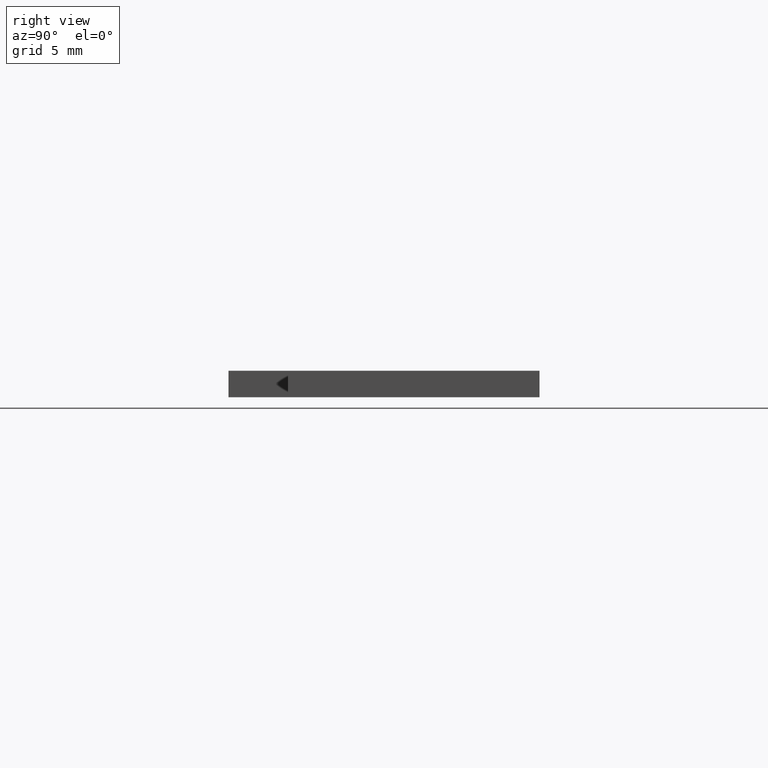
[diagram: clean part render]
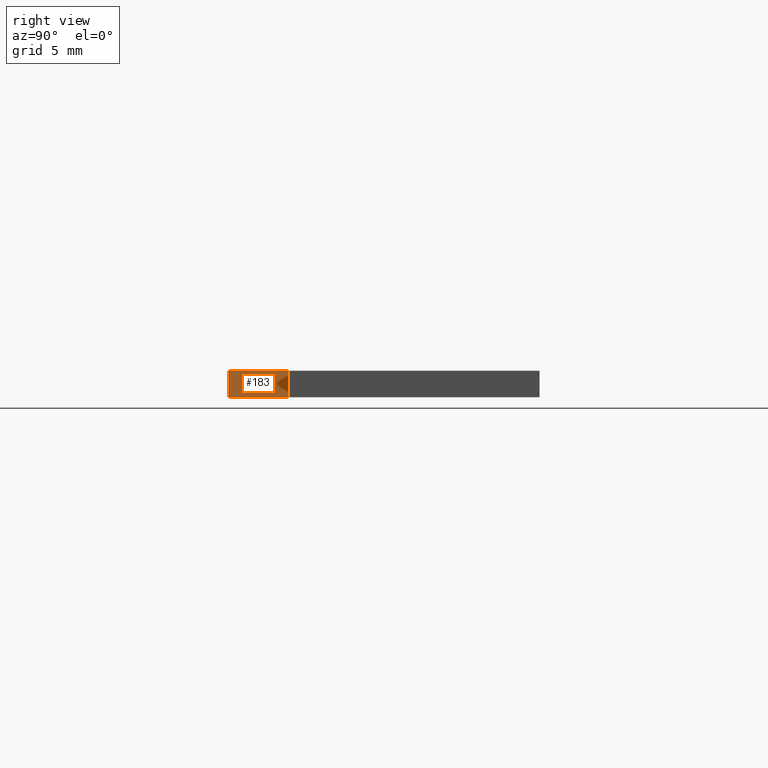
[diagram: same view with one face highlighted and labeled with its STEP entity id]
A machine part, right view. The second image highlights one B-rep face of the part: STEP entity #183.
In plain terms, the highlighted planar face has unit normal (1, 0, 0).
Its self-contained STEP definition (entity closure, byte-faithful):
#17=FACE_OUTER_BOUND('',#27,.T.);
#27=EDGE_LOOP('',(#132,#133,#134,#135));
#38=LINE('',#276,#62);
#44=LINE('',#289,#68);
#45=LINE('',#290,#69);
#46=LINE('',#291,#70);
#62=VECTOR('',#228,10.);
#68=VECTOR('',#236,10.);
#69=VECTOR('',#237,10.);
#70=VECTOR('',#238,10.);
#86=VERTEX_POINT('',#273);
#87=VERTEX_POINT('',#275);
#92=VERTEX_POINT('',#287);
#93=VERTEX_POINT('',#288);
#102=EDGE_CURVE('',#87,#86,#38,.T.);
#108=EDGE_CURVE('',#92,#93,#44,.T.);
#109=EDGE_CURVE('',#93,#87,#45,.T.);
#110=EDGE_CURVE('',#92,#86,#46,.T.);
#132=ORIENTED_EDGE('',*,*,#108,.T.);
#133=ORIENTED_EDGE('',*,*,#109,.T.);
#134=ORIENTED_EDGE('',*,*,#102,.T.);
#135=ORIENTED_EDGE('',*,*,#110,.F.);
#173=PLANE('',#213);
#183=ADVANCED_FACE('',(#17),#173,.T.);
#213=AXIS2_PLACEMENT_3D('',#286,#234,#235);
#228=DIRECTION('',(0.,1.,0.));
#234=DIRECTION('center_axis',(1.,0.,0.));
#235=DIRECTION('ref_axis',(0.,0.,-1.));
#236=DIRECTION('',(0.,-1.,0.));
#237=DIRECTION('',(0.,0.,-1.));
#238=DIRECTION('',(0.,0.,-1.));
#273=CARTESIAN_POINT('',(15.,-9.49999999999999,-1.));
#275=CARTESIAN_POINT('',(15.,-14.,-1.));
#276=CARTESIAN_POINT('',(15.,-9.49999999999999,-1.));
#286=CARTESIAN_POINT('Origin',(15.,-9.49999999999999,0.));
#287=CARTESIAN_POINT('',(15.,-9.49999999999999,1.));
#288=CARTESIAN_POINT('',(15.,-14.,1.));
#289=CARTESIAN_POINT('',(15.,-9.49999999999999,1.));
#290=CARTESIAN_POINT('',(15.,-14.,0.));
#291=CARTESIAN_POINT('',(15.,-9.49999999999999,0.));